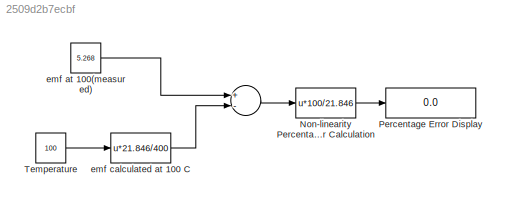
MODEL slx_2509d2b7ecbf
KIND model
BLOCK [Sum]  
  InputSameDT = off
  Inputs = +-
  OutDataTypeStr = Inherit: Inherit via internal rule
  Ports = [2, 1]
  SaturateOnIntegerOverflow = off
BLOCK [Fcn] Non-linearity Percentage Error Calculation
  Expr = u*100/21.846
BLOCK [Display] Percentage Error Display
  Decimation = 1
  Ports = [1]
BLOCK [Constant] Temperature
  Value = 100
BLOCK [Constant] emf at 100(measured)
  LockScale = on
  Value = 5.268
BLOCK [Fcn] emf calculated at 100 C
  Expr = u*21.846/400
LINE  :1 -> Non-linearity Percentage Error Calculation:1
LINE Non-linearity Percentage Error Calculation:1 -> Percentage Error Display:1
LINE Temperature:1 -> emf calculated at 100 C:1
LINE emf at 100(measured):1 ->  :1
LINE emf calculated at 100 C:1 ->  :2
